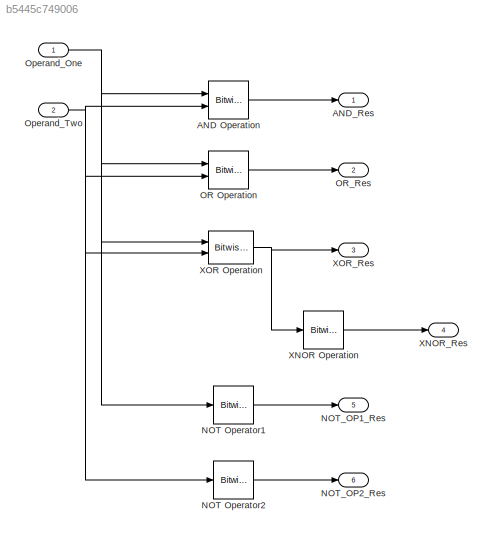
MODEL slx_b5445c749006
KIND model
CONFIG AbsTol = auto
CONFIG FixedStep = auto
CONFIG MaxStep = auto
CONFIG MinStep = auto
CONFIG RelTol = 1e-3
CONFIG SampleTimeConstraint = Unconstrained
CONFIG Solver = VariableStepAuto
CONFIG SolverMode = Auto
CONFIG SolverName = VariableStepAuto
CONFIG StartTime = 0.0
CONFIG StopTime = 10.0
BLOCK [Reference] AND Operation  REF=simulink/Logic and Bit
Operations/Bitwise
Operator
  Ports = [2, 1]
  SourceBlock = simulink/Logic and Bit\nOperations/Bitwise\nOperator
  SourceType = Bitwise Operator
BLOCK [Outport] AND_Res
  IconDisplay = Port number
BLOCK [Reference] NOT Operator1  REF=simulink/Logic and Bit
Operations/Bitwise
Operator
  Ports = [1, 1]
  SourceBlock = simulink/Logic and Bit\nOperations/Bitwise\nOperator
  SourceType = Bitwise Operator
BLOCK [Reference] NOT Operator2  REF=simulink/Logic and Bit
Operations/Bitwise
Operator
  Ports = [1, 1]
  SourceBlock = simulink/Logic and Bit\nOperations/Bitwise\nOperator
  SourceType = Bitwise Operator
BLOCK [Outport] NOT_OP1_Res
  IconDisplay = Port number
  Port = 5
BLOCK [Outport] NOT_OP2_Res
  IconDisplay = Port number
  Port = 6
BLOCK [Reference] OR Operation  REF=simulink/Logic and Bit
Operations/Bitwise
Operator
  Ports = [2, 1]
  SourceBlock = simulink/Logic and Bit\nOperations/Bitwise\nOperator
  SourceType = Bitwise Operator
BLOCK [Outport] OR_Res
  IconDisplay = Port number
  Port = 2
BLOCK [Inport] Operand_One
  IconDisplay = Port number
  OutDataTypeStr = uint16
BLOCK [Inport] Operand_Two
  IconDisplay = Port number
  OutDataTypeStr = uint16
  Port = 2
BLOCK [Reference] XNOR Operation  REF=simulink/Logic and Bit
Operations/Bitwise
Operator
  Ports = [1, 1]
  SourceBlock = simulink/Logic and Bit\nOperations/Bitwise\nOperator
  SourceType = Bitwise Operator
BLOCK [Outport] XNOR_Res
  IconDisplay = Port number
  Port = 4
BLOCK [Reference] XOR Operation  REF=simulink/Logic and Bit
Operations/Bitwise
Operator
  Ports = [2, 1]
  SourceBlock = simulink/Logic and Bit\nOperations/Bitwise\nOperator
  SourceType = Bitwise Operator
BLOCK [Outport] XOR_Res
  IconDisplay = Port number
  Port = 3
LINE AND Operation:1 -> AND_Res:1
LINE NOT Operator1:1 -> NOT_OP1_Res:1
LINE NOT Operator2:1 -> NOT_OP2_Res:1
LINE OR Operation:1 -> OR_Res:1
NET Operand_One:1 -> AND Operation:1, NOT Operator1:1, OR Operation:1, XOR Operation:1
NET Operand_Two:1 -> AND Operation:2, NOT Operator2:1, OR Operation:2, XOR Operation:2
LINE XNOR Operation:1 -> XNOR_Res:1
NET XOR Operation:1 -> XNOR Operation:1, XOR_Res:1
note: NET lines group one-source signal fan-out (src -> all destinations, sorted); 1:1 wires keep LINE
